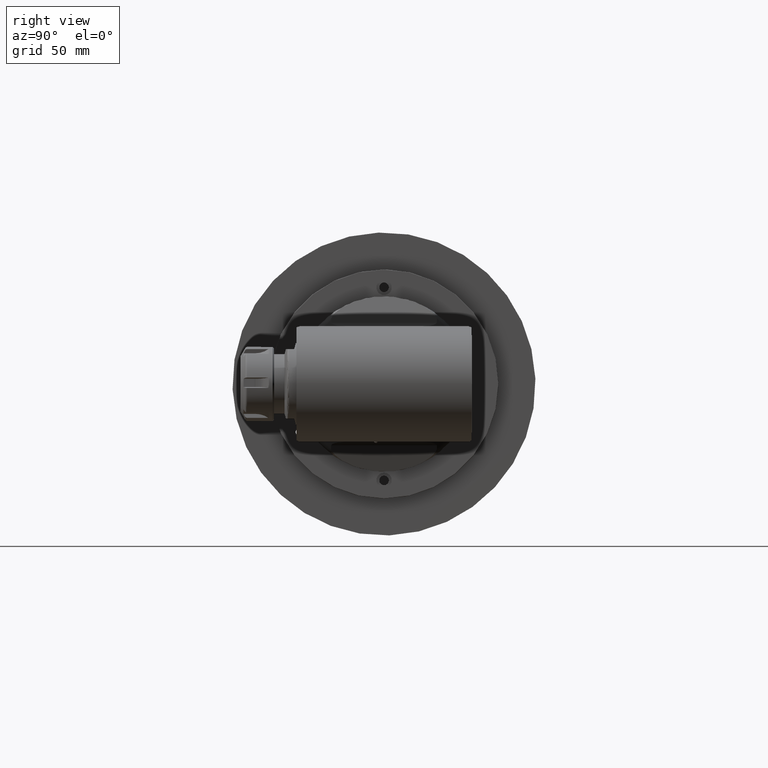
[diagram: clean part render]
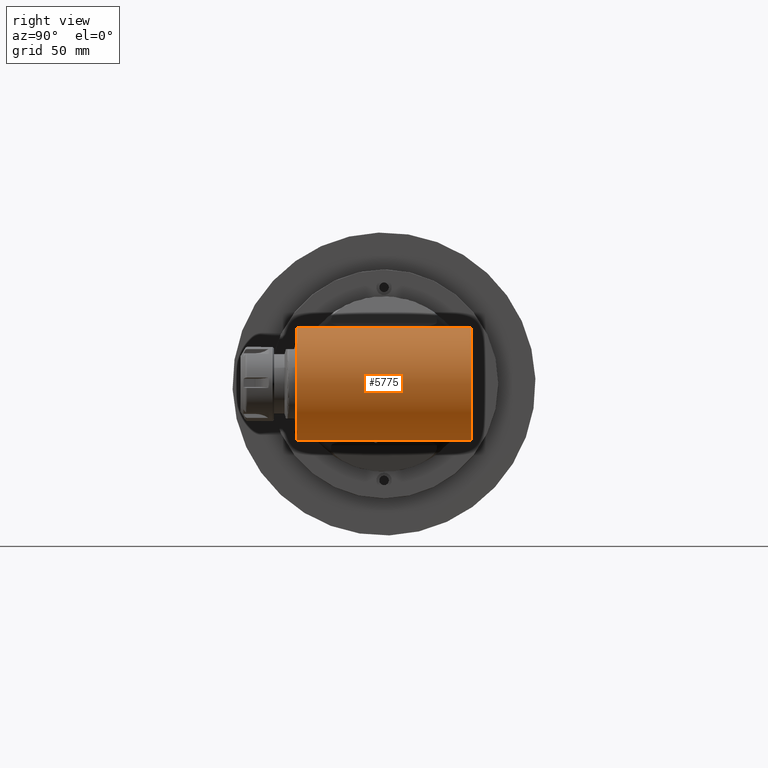
[diagram: same view with one face highlighted and labeled with its STEP entity id]
A machine part, right view. The second image highlights one B-rep face of the part: STEP entity #5775.
In plain terms, the highlighted cylindrical surface (partial cylindrical patch) has radius 38 mm, axis along (0, 1, 0).
Its self-contained STEP definition (entity closure, byte-faithful):
#76=CYLINDRICAL_SURFACE('',#6285,38.);
#539=FACE_OUTER_BOUND('',#915,.T.);
#915=EDGE_LOOP('',(#4115,#4116,#4117,#4118));
#1382=CIRCLE('',#6270,38.);
#1389=CIRCLE('',#6286,38.);
#1676=LINE('',#8769,#2020);
#1717=LINE('',#9406,#2061);
#2020=VECTOR('',#6926,118.);
#2061=VECTOR('',#7193,118.);
#2369=VERTEX_POINT('',#8766);
#2370=VERTEX_POINT('',#8768);
#2477=VERTEX_POINT('',#9361);
#2484=VERTEX_POINT('',#9405);
#2949=EDGE_CURVE('',#2370,#2369,#1676,.T.);
#3093=EDGE_CURVE('',#2370,#2477,#1382,.T.);
#3108=EDGE_CURVE('',#2484,#2477,#1717,.T.);
#3111=EDGE_CURVE('',#2369,#2484,#1389,.T.);
#4115=ORIENTED_EDGE('',*,*,#2949,.T.);
#4116=ORIENTED_EDGE('',*,*,#3111,.T.);
#4117=ORIENTED_EDGE('',*,*,#3108,.T.);
#4118=ORIENTED_EDGE('',*,*,#3093,.F.);
#5775=ADVANCED_FACE('',(#539),#76,.T.);
#6270=AXIS2_PLACEMENT_3D('',#9362,#7162,#7163);
#6285=AXIS2_PLACEMENT_3D('',#9412,#7195,#7196);
#6286=AXIS2_PLACEMENT_3D('',#9413,#7197,#7198);
#6926=DIRECTION('',(0.,-1.,0.));
#7162=DIRECTION('center_axis',(0.,1.,0.));
#7163=DIRECTION('ref_axis',(0.0871557427475461,0.,0.996194698091755));
#7193=DIRECTION('',(0.,1.,0.));
#7195=DIRECTION('center_axis',(0.,1.,0.));
#7196=DIRECTION('ref_axis',(1.,0.,1.22464679914735E-16));
#7197=DIRECTION('center_axis',(0.,1.,0.));
#7198=DIRECTION('ref_axis',(0.0871557427475461,0.,0.996194698091755));
#8766=CARTESIAN_POINT('',(3.81191822441,-59.,37.85539852749));
#8768=CARTESIAN_POINT('',(3.81191822441,59.,37.85539852749));
#8769=CARTESIAN_POINT('',(3.81191822441,59.,37.85539852749));
#9361=CARTESIAN_POINT('',(3.81191822441,59.,-37.85539852749));
#9362=CARTESIAN_POINT('Origin',(0.5,59.,0.));
#9405=CARTESIAN_POINT('',(3.81191822441,-59.,-37.85539852749));
#9406=CARTESIAN_POINT('',(3.81191822441,-59.,-37.85539852749));
#9412=CARTESIAN_POINT('Origin',(0.5,-70.8000024,0.));
#9413=CARTESIAN_POINT('Origin',(0.5,-59.,0.));